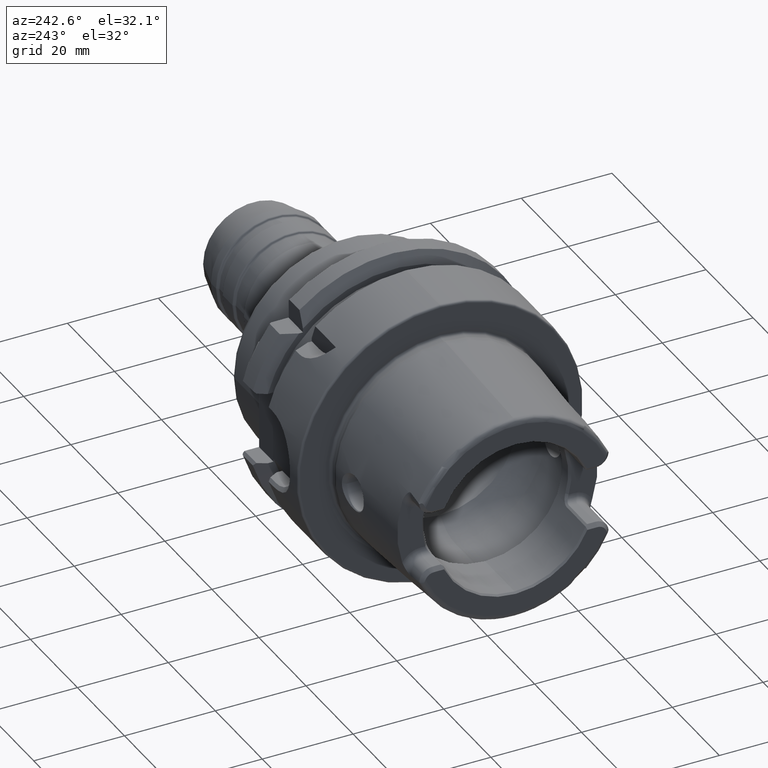
[diagram: clean part render]
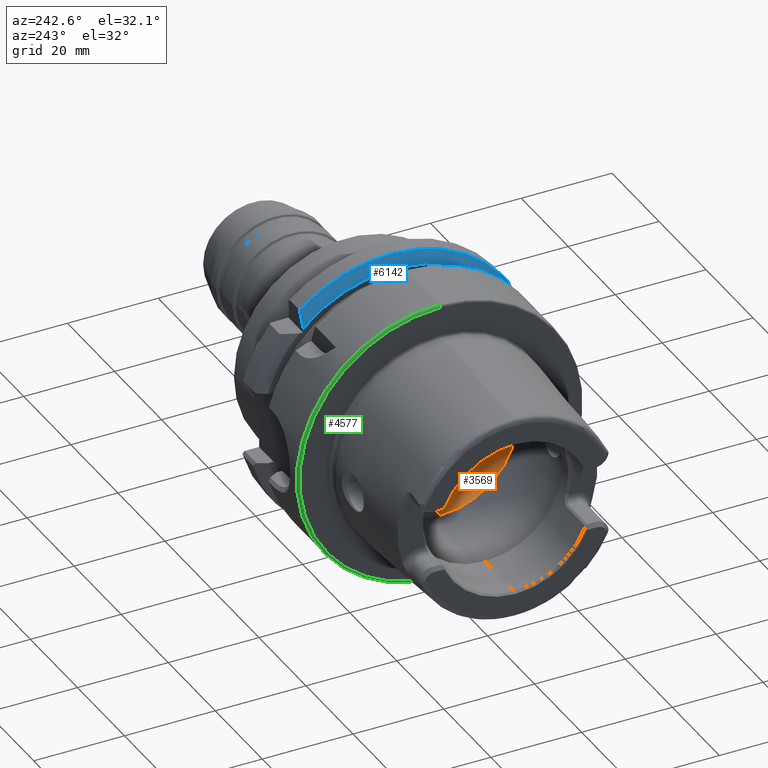
[diagram: same view with three faces highlighted in distinct colors, each labeled with its STEP entity id]
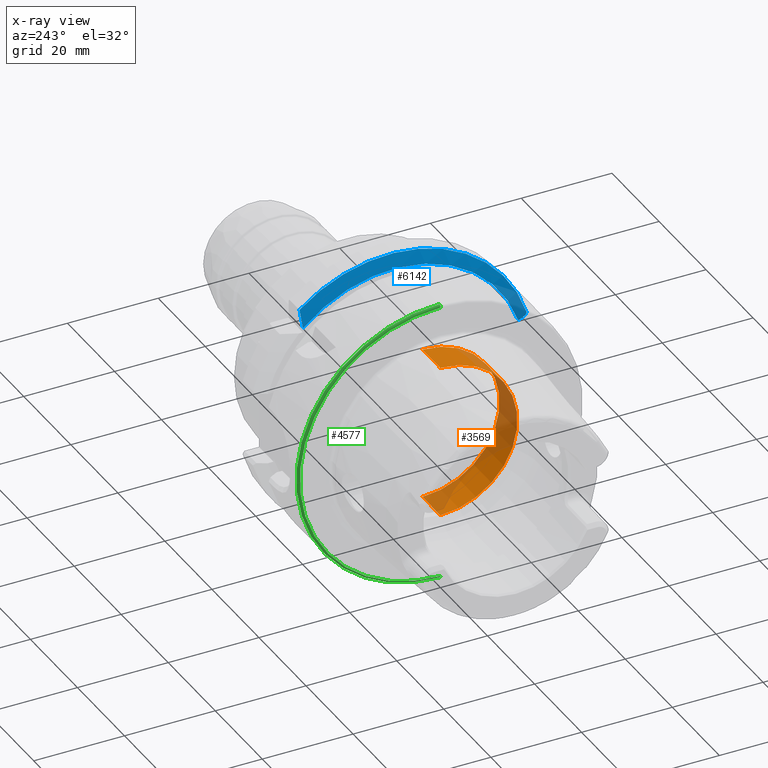
[diagram: x-ray of the same camera — body ghosted, the three highlighted faces saturated]
A machine part, auxiliary view with three faces highlighted in distinct colors.
The next image is the same camera in x-ray (body ghosted, the three faces saturated) — at least one of them is partly hidden behind the body in this view.
Their STEP definitions:

[orange] entity #3569 — the highlighted cylindrical surface (partial cylindrical patch) has radius 17 mm, axis along (1, 0, 0).
#181=DIRECTION('',(-1.E0,0.E0,0.E0));
#182=VECTOR('',#181,7.579836946705E0);
#183=CARTESIAN_POINT('',(7.670843802411E0,0.E0,-1.7E1));
#184=LINE('',#183,#182);
#185=CARTESIAN_POINT('',(7.670843802411E0,0.E0,0.E0));
#186=DIRECTION('',(1.E0,0.E0,0.E0));
#187=DIRECTION('',(0.E0,0.E0,1.E0));
#188=AXIS2_PLACEMENT_3D('',#185,#186,#187);
#190=DIRECTION('',(-1.E0,0.E0,0.E0));
#191=VECTOR('',#190,7.579836946705E0);
#192=CARTESIAN_POINT('',(7.670843802411E0,0.E0,1.7E1));
#193=LINE('',#192,#191);
#194=CARTESIAN_POINT('',(9.100685570619E-2,0.E0,0.E0));
#195=DIRECTION('',(1.E0,0.E0,0.E0));
#196=DIRECTION('',(0.E0,0.E0,1.E0));
#197=AXIS2_PLACEMENT_3D('',#194,#195,#196);
#2870=CARTESIAN_POINT('',(9.100685570619E-2,0.E0,-1.7E1));
#2871=CARTESIAN_POINT('',(9.100685570619E-2,0.E0,1.7E1));
#2872=VERTEX_POINT('',#2870);
#2873=VERTEX_POINT('',#2871);
#2878=CARTESIAN_POINT('',(7.670843802411E0,0.E0,-1.7E1));
#2879=VERTEX_POINT('',#2878);
#2880=CARTESIAN_POINT('',(7.670843802411E0,0.E0,1.7E1));
#2881=VERTEX_POINT('',#2880);
#3556=CARTESIAN_POINT('',(0.E0,0.E0,0.E0));
#3557=DIRECTION('',(1.E0,0.E0,0.E0));
#3558=DIRECTION('',(0.E0,0.E0,1.E0));
#3559=AXIS2_PLACEMENT_3D('',#3556,#3557,#3558);
#3560=CYLINDRICAL_SURFACE('',#3559,1.7E1);
#3561=ORIENTED_EDGE('',*,*,#3518,.F.);
#3563=ORIENTED_EDGE('',*,*,#3562,.F.);
#3564=ORIENTED_EDGE('',*,*,#3522,.T.);
#3566=ORIENTED_EDGE('',*,*,#3565,.T.);
#3567=EDGE_LOOP('',(#3561,#3563,#3564,#3566));
#3568=FACE_OUTER_BOUND('',#3567,.F.);
#3569=ADVANCED_FACE('',(#3568),#3560,.F.);
#189=CIRCLE('',#188,1.7E1);
#198=CIRCLE('',#197,1.7E1);
#3518=EDGE_CURVE('',#2879,#2872,#184,.T.);
#3522=EDGE_CURVE('',#2881,#2873,#193,.T.);
#3562=EDGE_CURVE('',#2881,#2879,#189,.T.);
#3565=EDGE_CURVE('',#2873,#2872,#198,.T.);

[blue] entity #6142 — the highlighted conical surface has half-angle 60 deg.
#2283=CARTESIAN_POINT('',(2.137749905409E1,-3.007314630073E1,9.373146300730E0));
#2284=CARTESIAN_POINT('',(2.133222651769E1,-3.001052821082E1,9.310528210818E0));
#2285=CARTESIAN_POINT('',(2.124208332148E1,-2.988571910367E1,9.185719103672E0));
#2286=CARTESIAN_POINT('',(2.115274415399E1,-2.976176404209E1,9.061764042087E0));
#2287=CARTESIAN_POINT('',(2.110827564058E1,-2.97E1,9.E0));
#2289=CARTESIAN_POINT('',(1.9875E1,-2.746035349595E1,9.E0));
#2290=CARTESIAN_POINT('',(2.000815730744E1,-2.770305988737E1,9.E0));
#2291=CARTESIAN_POINT('',(2.027705920850E1,-2.819256428174E1,9.E0));
#2292=CARTESIAN_POINT('',(2.068812000744E1,-2.893903747045E1,9.E0));
#2293=CARTESIAN_POINT('',(2.096736261765E1,-2.944497148241E1,9.E0));
#2294=CARTESIAN_POINT('',(2.110827564058E1,-2.97E1,9.E0));
#2296=CARTESIAN_POINT('',(1.9875E1,0.E0,0.E0));
#2297=DIRECTION('',(-1.E0,0.E0,0.E0));
#2298=DIRECTION('',(0.E0,-9.502643112990E-1,3.114445996827E-1));
#2299=AXIS2_PLACEMENT_3D('',#2296,#2297,#2298);
#2301=CARTESIAN_POINT('',(1.9875E1,2.E1,2.085835597842E1));
#2302=CARTESIAN_POINT('',(2.002730864105E1,2.E1,2.122383865787E1));
#2303=CARTESIAN_POINT('',(2.034159396585E1,2.E1,2.196878900649E1));
#2304=CARTESIAN_POINT('',(2.084187084513E1,2.E1,2.312708230139E1));
#2305=CARTESIAN_POINT('',(2.119561267371E1,2.E1,2.392841370879E1));
#2306=CARTESIAN_POINT('',(2.137749905409E1,2.E1,2.433618704728E1));
#2308=CARTESIAN_POINT('',(2.137749905409E1,0.E0,0.E0));
#2309=DIRECTION('',(1.E0,0.E0,0.E0));
#2310=DIRECTION('',(0.E0,6.349206349206E-1,7.725773665802E-1));
#2311=AXIS2_PLACEMENT_3D('',#2308,#2309,#2310);
#2976=CARTESIAN_POINT('',(1.9875E1,-2.746035349595E1,9.E0));
#2977=VERTEX_POINT('',#2976);
#2998=CARTESIAN_POINT('',(1.9875E1,2.E1,2.085835597842E1));
#3000=VERTEX_POINT('',#2998);
#3004=VERTEX_POINT('',#2306);
#3176=VERTEX_POINT('',#2283);
#3177=VERTEX_POINT('',#2287);
#6128=CARTESIAN_POINT('',(2.062624952704E1,0.E0,0.E0));
#6129=DIRECTION('',(1.E0,0.E0,0.E0));
#6130=DIRECTION('',(0.E0,0.E0,1.E0));
#6131=AXIS2_PLACEMENT_3D('',#6128,#6129,#6130);
#6132=CONICAL_SURFACE('',#6131,3.019879765E1,6.E1);
#6133=ORIENTED_EDGE('',*,*,#5878,.T.);
#6134=ORIENTED_EDGE('',*,*,#5912,.F.);
#6136=ORIENTED_EDGE('',*,*,#6135,.T.);
#6138=ORIENTED_EDGE('',*,*,#6137,.T.);
#6139=ORIENTED_EDGE('',*,*,#4461,.T.);
#6140=EDGE_LOOP('',(#6133,#6134,#6136,#6138,#6139));
#6141=FACE_OUTER_BOUND('',#6140,.F.);
#6142=ADVANCED_FACE('',(#6141),#6132,.T.);
#2288=B_SPLINE_CURVE_WITH_KNOTS('',3,(#2283,#2284,#2285,#2286,#2287),
.UNSPECIFIED.,.F.,.F.,(4,1,4),(0.E0,5.E-1,1.E0),.UNSPECIFIED.);
#2295=B_SPLINE_CURVE_WITH_KNOTS('',3,(#2289,#2290,#2291,#2292,#2293,#2294),
.UNSPECIFIED.,.F.,.F.,(4,1,1,4),(0.E0,3.333333333333E-1,6.666666666667E-1,1.E0),
.UNSPECIFIED.);
#2300=CIRCLE('',#2299,2.88975953E1);
#2307=B_SPLINE_CURVE_WITH_KNOTS('',3,(#2301,#2302,#2303,#2304,#2305,#2306),
.UNSPECIFIED.,.F.,.F.,(4,1,1,4),(0.E0,3.333333333333E-1,6.666666666667E-1,1.E0),
.UNSPECIFIED.);
#2312=CIRCLE('',#2311,3.15E1);
#4461=EDGE_CURVE('',#3004,#3176,#2312,.T.);
#5878=EDGE_CURVE('',#3176,#3177,#2288,.T.);
#5912=EDGE_CURVE('',#2977,#3177,#2295,.T.);
#6135=EDGE_CURVE('',#2977,#3000,#2300,.T.);
#6137=EDGE_CURVE('',#3000,#3004,#2307,.T.);

[green] entity #4577 — the highlighted toroidal blend (fillet) surface has major radius 31 mm and minor (blend) radius 0.5 mm.
#951=CARTESIAN_POINT('',(5.E-1,0.E0,0.E0));
#952=DIRECTION('',(-1.E0,0.E0,0.E0));
#953=DIRECTION('',(0.E0,0.E0,1.E0));
#954=AXIS2_PLACEMENT_3D('',#951,#952,#953);
#1041=CARTESIAN_POINT('',(5.E-1,0.E0,3.1E1));
#1042=DIRECTION('',(0.E0,1.E0,0.E0));
#1043=DIRECTION('',(-1.E0,0.E0,2.842170943040E-14));
#1044=AXIS2_PLACEMENT_3D('',#1041,#1042,#1043);
#1056=CARTESIAN_POINT('',(0.E0,0.E0,0.E0));
#1057=DIRECTION('',(-1.E0,0.E0,0.E0));
#1058=DIRECTION('',(0.E0,0.E0,1.E0));
#1059=AXIS2_PLACEMENT_3D('',#1056,#1057,#1058);
#1987=CARTESIAN_POINT('',(5.E-1,0.E0,-3.1E1));
#1988=DIRECTION('',(0.E0,-1.E0,0.E0));
#1989=DIRECTION('',(-1.E0,0.E0,0.E0));
#1990=AXIS2_PLACEMENT_3D('',#1987,#1988,#1989);
#3207=CARTESIAN_POINT('',(0.E0,0.E0,3.1E1));
#3208=CARTESIAN_POINT('',(0.E0,1.138921523207E-14,-3.1E1));
#3209=VERTEX_POINT('',#3207);
#3210=VERTEX_POINT('',#3208);
#3211=CARTESIAN_POINT('',(5.E-1,0.E0,3.15E1));
#3212=CARTESIAN_POINT('',(5.E-1,0.E0,-3.15E1));
#3213=VERTEX_POINT('',#3211);
#3214=VERTEX_POINT('',#3212);
#4563=CARTESIAN_POINT('',(5.E-1,0.E0,0.E0));
#4564=DIRECTION('',(1.E0,0.E0,0.E0));
#4565=DIRECTION('',(0.E0,-7.372485208601E-3,9.999728228616E-1));
#4566=AXIS2_PLACEMENT_3D('',#4563,#4564,#4565);
#4567=TOROIDAL_SURFACE('',#4566,3.1E1,5.E-1);
#4569=ORIENTED_EDGE('',*,*,#4568,.T.);
#4571=ORIENTED_EDGE('',*,*,#4570,.T.);
#4572=ORIENTED_EDGE('',*,*,#4536,.F.);
#4574=ORIENTED_EDGE('',*,*,#4573,.F.);
#4575=EDGE_LOOP('',(#4569,#4571,#4572,#4574));
#4576=FACE_OUTER_BOUND('',#4575,.F.);
#4577=ADVANCED_FACE('',(#4576),#4567,.T.);
#955=CIRCLE('',#954,3.15E1);
#1045=CIRCLE('',#1044,5.E-1);
#1060=CIRCLE('',#1059,3.1E1);
#1991=CIRCLE('',#1990,5.E-1);
#4536=EDGE_CURVE('',#3213,#3214,#955,.T.);
#4568=EDGE_CURVE('',#3209,#3210,#1060,.T.);
#4570=EDGE_CURVE('',#3210,#3214,#1991,.T.);
#4573=EDGE_CURVE('',#3209,#3213,#1045,.T.);